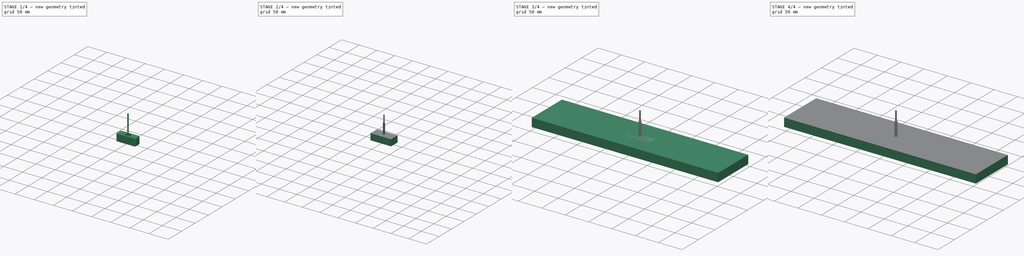
[diagram: build sequence overview — one tinted view per stage of 4, left to right]
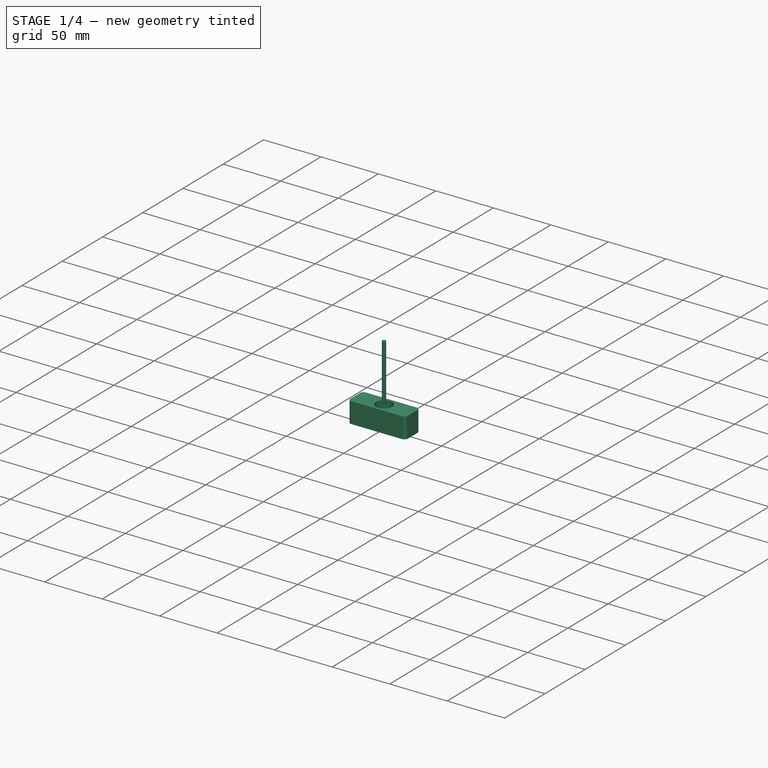
[diagram: stage 1 of 4 — iso view after this stage's code; geometry added in this stage tinted green]
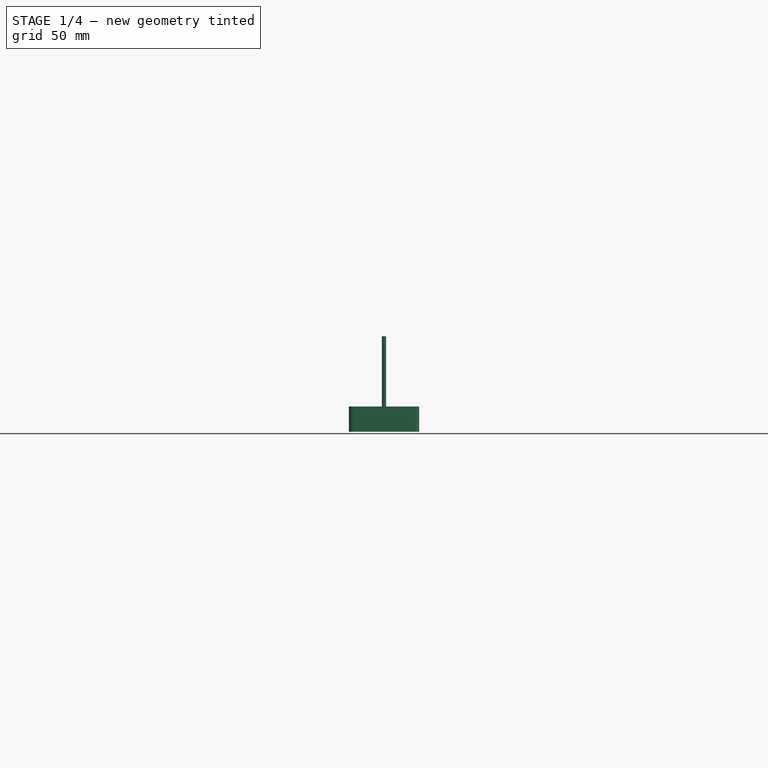
[diagram: stage 1 of 4 — front view after this stage's code; geometry added in this stage tinted green]
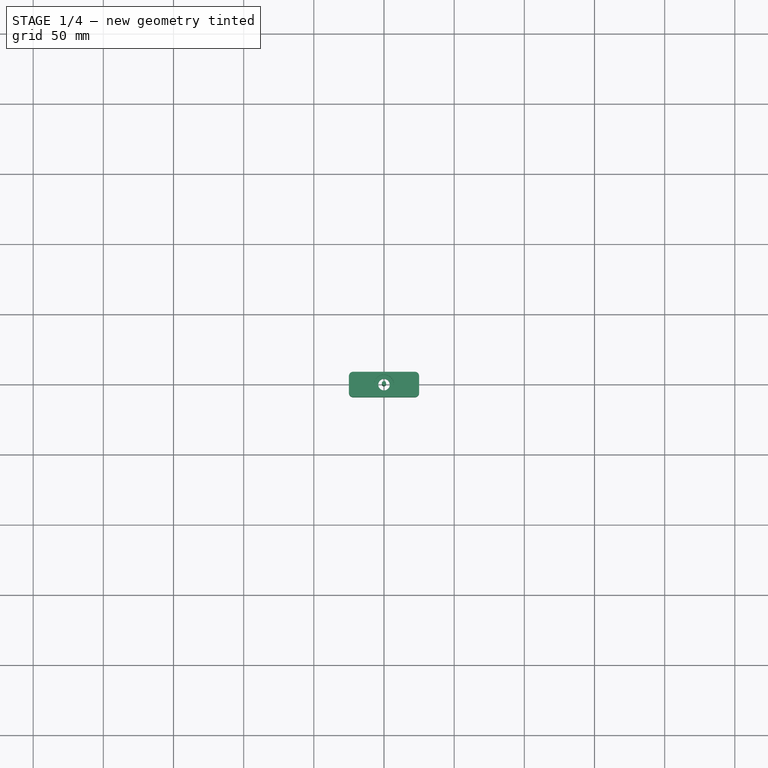
[diagram: stage 1 of 4 — top view after this stage's code; geometry added in this stage tinted green]
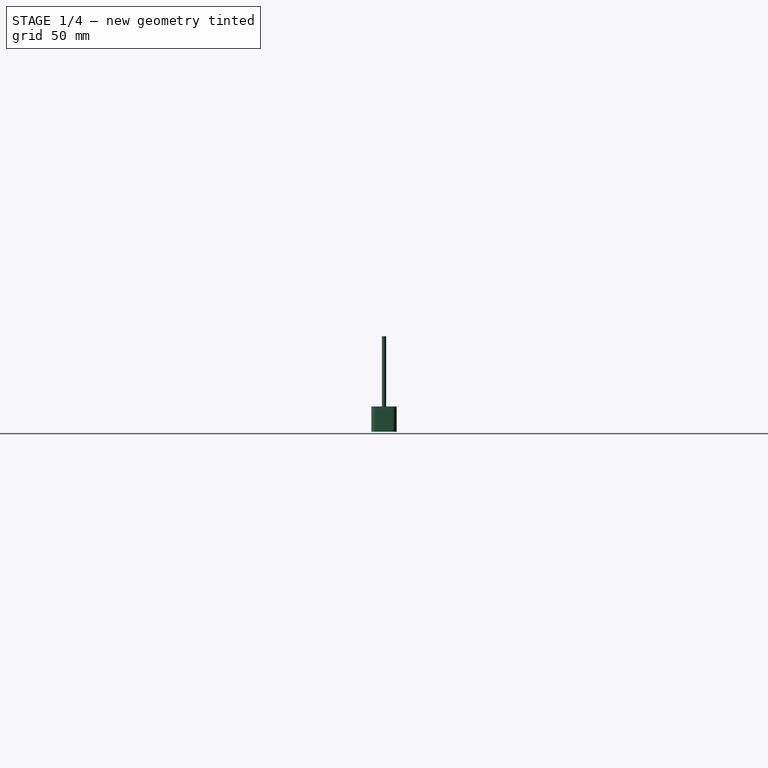
[diagram: stage 1 of 4 — right view after this stage's code; geometry added in this stage tinted green]
FCSTD DOCUMENT  (FreeCAD 1.0R39109 (Git))
Label: Starlink_suport
License: All rights reserved
LicenseURL: http://en.wikipedia.org/wiki/All_rights_reserved
objects: Path::FeaturePython×14, Part::FeaturePython×10, App::DocumentObjectGroup×9, App::FeaturePython×3, PartDesign::Body×3, Sketcher::SketchObject×3, PartDesign::ShapeBinder×2, PartDesign::Pad×2, Part::Feature×1, PartDesign::Fillet×1, PartDesign::Pocket×1
note: 40 computed .brp shape members not serialized (recipe doc carries the construction recipe); baked Part::Feature solids carry a one-line shape summary decoded from their .brp

FEATURE [Path::FeaturePython] Adaptive  # Path/CAM operation (typed FeaturePython)
  Active = true
  Base = -> [Clone001]
  ClearanceHeight = 5
  CoolantMode = 0
  CycleTime = 00:24:47
  ExtensionCorners = true
  ExtensionLengthDefault = 2.5
  FinalDepth = -18
  FinishDepth = 0
  FinishingProfile = true
  ForceInsideOut = false
  HelixAngle = 5
  HelixConeAngle = 0
  HelixDiameterLimit = 2
  KeepToolDownRatio = 3
  LiftDistance = 0
  OpFinalDepth = -18
  OpStartDepth = 2.167e-13
  OpStockZMax = 2.167e-13
  OpStockZMin = -18
  OpToolDiameter = 5
  OperationType = 0
  SafeHeight = 3
  Side = 1
  StartDepth = 2.167e-13
  StepDown = 10
  StepOver = 20
  StockToLeave = 0
  StopProcessing = false
  Stopped = false
  Tolerance = 0.1
  ToolController = -> _mm_Endmill002
  UseHelixArcs = false
  UseOutline = false
  expr: ClearanceHeight = OpStockZMax + SetupSheet001.ClearanceHeightOffset
  expr: ExtensionLengthDefault = OpToolDiameter / 2
  expr: FinalDepth = OpFinalDepth
  expr: SafeHeight = OpStockZMax + SetupSheet001.SafeHeightOffset
  expr: StartDepth = OpStartDepth
  expr: StepDown = OpToolDiameter * 2
FEATURE [App::DocumentObjectGroup] Operations001
  Group = -> [Adaptive]
FEATURE [Path::FeaturePython] Job001  # Path/CAM operation (typed FeaturePython)
  CycleTime = 00:24:47
  Fixtures = G54
  GeometryTolerance = 0.01
  JobType = 0
  Model = -> Model001
  Operations = -> Operations001
  OrderOutputBy = 0
  PostProcessor = 11
  PostProcessorArgs = --bcnc
  PostProcessorOutputFile = %D/%d_2
  SetupSheet = -> SetupSheet001
  SplitOutput = false
  Stock = -> Stock011
  Tools = -> Tools001
FEATURE [Sketcher::SketchObject] Sketch
  ArcFitTolerance = 1e-06
  AttachmentSupport = -> [XY_Plane002]
  FullyConstrained = true
  MakeInternals = false
  MapMode = 5
  sketch-geometry (6):
    g0: LineSegment StartX=-25 StartY=-9 StartZ=0 EndX=25 EndY=-9 EndZ=0
    g1: LineSegment StartX=25 StartY=-9 StartZ=0 EndX=25 EndY=9 EndZ=0
    g2: LineSegment StartX=25 StartY=9 StartZ=0 EndX=-25 EndY=9 EndZ=0
    g3: LineSegment StartX=-25 StartY=9 StartZ=0 EndX=-25 EndY=-9 EndZ=0
    g4: GeomPoint [constr] X=0 Y=0 Z=0
    g5: Circle CenterX=0 CenterY=0 CenterZ=0 NormalX=0 NormalY=0 NormalZ=1 AngleXU=0 Radius=4.1
  constraints (14):
    c: Coincident(g0,g1)
    c: Coincident(g1,g2)
    c: Coincident(g2,g3)
    c: Coincident(g3,g0)
    c: Horizontal(g0)
    c: Horizontal(g2)
    c: Vertical(g1)
    c: Vertical(g3)
    c: Symmetric(g2,g0,g4)
    c: Distance(g1,g3) = 50
    c: Distance(g0,g2) = 18
    c: Coincident(g4,g-1)
    c: Diameter(g5) = 8.2
    c: Coincident(g5,g4)
FEATURE [PartDesign::Pad] Pad001
  Direction = (0,0,1)
  Length = 18
  Length2 = 10
  Profile = -> Sketch
  ReferenceAxis = -> Sketch [N_Axis]
  Refine = true
  Reversed = true
  Suppressed = false
  Type = 0
FEATURE [PartDesign::Fillet] Fillet
  Base = -> Pad001 [Edge2,Edge5,Edge8,Edge1]
  BaseFeature = -> Pad001
  Radius = 3
  Refine = true
  SupportTransform = false
  Suppressed = false
  UseAllEdges = false
FEATURE [Sketcher::SketchObject] Sketch003
  ArcFitTolerance = 1e-06
  AttachmentSupport = -> [Fillet]
  FullyConstrained = true
  MakeInternals = false
  MapMode = 5
  sketch-geometry (1):
    g0: Circle CenterX=0 CenterY=0 CenterZ=0 NormalX=0 NormalY=0 NormalZ=1 AngleXU=0 Radius=7
  constraints (2):
    c: Diameter(g0) = 14
    c: Coincident(g0,g-1)
FEATURE [PartDesign::Pocket] Pocket
  BaseFeature = -> Fillet
  Direction = (0,0,-1)
  Length = 9
  Length2 = 5
  Profile = -> Sketch003
  ReferenceAxis = -> Sketch003 [N_Axis]
  Refine = true
  Suppressed = false
  Type = 0
FEATURE [Part::FeaturePython] ToolBit005  label="3mm Endmill002"  # Path/CAM toolbit (typed FeaturePython)
  BitPropertyNames = Chipload | CuttingEdgeHeight | Diameter | Flutes | Length | Material | ShankDiameter | SpindleDirection
  BitShape = <path>
  Chipload = 0
  CuttingEdgeHeight = 15
  Diameter = 3
  File = <path>
  Flutes = 0
  Length = 50
  Material = 0
  ShankDiameter = 3
  ShapeName = endmill
  SpindleDirection = 0
FEATURE [Path::FeaturePython] _mm_Endmill003  label="3mm Endmill003"  # Path/CAM operation (typed FeaturePython)
  HorizFeed = 6.66667
  HorizRapid = 0
  SpindleDir = 0
  SpindleSpeed = 10000
  Tool = -> ToolBit005
  ToolNumber = 2
  VertFeed = 3.33333
  VertRapid = 0
  expr: HorizRapid = SetupSheet002.HorizRapid
  expr: VertRapid = SetupSheet002.VertRapid
FEATURE [App::DocumentObjectGroup] Tools002
  Group = -> [_mm_Endmill003]
FEATURE [Path::FeaturePython] Adaptive001  # Path/CAM operation (typed FeaturePython)
  Active = true
  Base = -> [Clone002]
  ClearanceHeight = 5
  CoolantMode = 0
  CycleTime = 00:02:14
  ExtensionCorners = true
  ExtensionLengthDefault = 1.5
  FinalDepth = -9
  FinishDepth = 0
  FinishingProfile = true
  ForceInsideOut = true
  HelixAngle = 5
  HelixConeAngle = 0
  HelixDiameterLimit = 2
  KeepToolDownRatio = 3
  LiftDistance = 0
  OpFinalDepth = -9
  OpStartDepth = 0
  OpStockZMax = 0
  OpStockZMin = -18
  OpToolDiameter = 3
  OperationType = 0
  SafeHeight = 3
  Side = 1
  StartDepth = 0
  StepDown = 6
  StepOver = 20
  StockToLeave = 0
  StopProcessing = false
  Stopped = false
  Tolerance = 0.1
  ToolController = -> _mm_Endmill003
  UseHelixArcs = false
  UseOutline = true
  expr: ClearanceHeight = OpStockZMax + SetupSheet002.ClearanceHeightOffset
  expr: ExtensionLengthDefault = OpToolDiameter / 2
  expr: FinalDepth = OpFinalDepth
  expr: SafeHeight = OpStockZMax + SetupSheet002.SafeHeightOffset
  expr: StartDepth = OpStartDepth
  expr: StepDown = OpToolDiameter * 2
FEATURE [Path::FeaturePython] Adaptive002  # Path/CAM operation (typed FeaturePython)
  Active = true
  ClearanceHeight = 5
  CoolantMode = 0
  CycleTime = 00:00:01
  ExtensionCorners = true
  ExtensionLengthDefault = 1.5
  FinalDepth = 0
  FinishDepth = 0
  FinishingProfile = true
  ForceInsideOut = false
  HelixAngle = 5
  HelixConeAngle = 0
  HelixDiameterLimit = 0
  KeepToolDownRatio = 3
  LiftDistance = 0
  OpFinalDepth = 0
  OpStartDepth = 3
  OpStockZMax = 0
  OpStockZMin = -18
  OpToolDiameter = 3
  OperationType = 0
  SafeHeight = 3
  Side = 1
  StartDepth = 3
  StepDown = 3
  StepOver = 20
  StockToLeave = 0
  StopProcessing = false
  Stopped = false
  Tolerance = 0.1
  ToolController = -> _mm_Endmill003
  UseHelixArcs = false
  UseOutline = false
  expr: ClearanceHeight = OpStockZMax + SetupSheet002.ClearanceHeightOffset
  expr: ExtensionLengthDefault = OpToolDiameter / 2
  expr: FinalDepth = OpFinalDepth
  expr: SafeHeight = OpStockZMax + SetupSheet002.SafeHeightOffset
  expr: StartDepth = OpStartDepth
  expr: StepDown = OpToolDiameter
FEATURE [Path::FeaturePython] Adaptive003  # Path/CAM operation (typed FeaturePython)
  Active = true
  Base = -> [Clone002]
  ClearanceHeight = 5
  CoolantMode = 0
  CycleTime = 00:01:24
  ExtensionCorners = true
  ExtensionLengthDefault = 1.5
  FinalDepth = -18
  FinishDepth = 0
  FinishingProfile = true
  ForceInsideOut = true
  HelixAngle = 5
  HelixConeAngle = 0
  HelixDiameterLimit = 2
  KeepToolDownRatio = 3
  LiftDistance = 0
  OpFinalDepth = -18
  OpStartDepth = 0
  OpStockZMax = 0
  OpStockZMin = -18
  OpToolDiameter = 3
  OperationType = 0
  SafeHeight = 3
  Side = 1
  StartDepth = -9
  StepDown = 6
  StepOver = 20
  StockToLeave = 0
  StopProcessing = false
  Stopped = false
  Tolerance = 0.1
  ToolController = -> _mm_Endmill003
  UseHelixArcs = false
  UseOutline = false
  expr: ClearanceHeight = OpStockZMax + SetupSheet002.ClearanceHeightOffset
  expr: ExtensionLengthDefault = OpToolDiameter / 2
  expr: FinalDepth = OpFinalDepth
  expr: SafeHeight = OpStockZMax + SetupSheet002.SafeHeightOffset
  expr: StepDown = OpToolDiameter * 2
FEATURE [Path::FeaturePython] Profile001  # Path/CAM operation (typed FeaturePython)
  Active = true
  AreaParams:
    Tolerance = 1e-07
    FitArcs = True
    Simplify = False
    CleanDistance = 0.0
    Accuracy = 0.01
    Unit = 1.0
    MinArcPoints = 4
    MaxArcPoints = 100
    ClipperScale = 10000000.0
    Fill = 0
    Coplanar = 0
    Reorient = True
    Outline = False
    Explode = False
    OpenMode = 0
    Deflection = 0.01
    SubjectFill = 0
    ClipFill = 0
    Offset = 1.5
    ExtraPass = 0
    Stepover = 0.0
    LastStepover = 0.0
    JoinType = 0
    EndType = 0
    MiterLimit = 2.0
    RoundPrecision = 0.0
    PocketMode = 0
    ToolRadius = 1.0
    PocketExtraOffset = 0.0
    PocketStepover = 0.0
    PocketLastStepover = 0.0
    FromCenter = False
    Angle = 45.0
    AngleShift = 0.0
    Shift = 0.0
    Thicken = False
    SectionCount = -1
    Stepdown = 1.0
    SectionOffset = 0.0
    SectionTolerance = 1e-06
    SectionMode = 2
    Project = False
  Base = -> [Clone002]
  ClearanceHeight = 5
  CoolantMode = 0
  CycleTime = 00:02:21
  Direction = 0
  FinalDepth = -18
  HandleMultipleFeatures = 0
  JoinType = 0
  MiterLimit = 0.1
  OffsetExtra = 0
  OpFinalDepth = -18
  OpStartDepth = 0
  OpStockZMax = 0
  OpStockZMin = -18
  OpToolDiameter = 3
  PathParams = {'orientation': 1, 'feedrate': 6.666666666666667, 'feedrate_v': 3.3333333333333335, 'verbose': True, 'resume_height': 3.0, 'retraction': 5.0, 'return_end': True, 'preamble': False}
  SafeHeight = 3
  Side = 0
  SplitArcs = false
  StartDepth = 0
  StartPoint = (0,0,0)
  StepDown = 3
  ToolController = -> _mm_Endmill003
  UseComp = true
  UseStartPoint = false
  processCircles = false
  processHoles = false
  processPerimeter = true
  expr: ClearanceHeight = OpStockZMax + SetupSheet002.ClearanceHeightOffset
  expr: FinalDepth = OpFinalDepth
  expr: SafeHeight = OpStockZMax + SetupSheet002.SafeHeightOffset
  expr: StartDepth = OpStartDepth
  expr: StepDown = OpToolDiameter
FEATURE [App::DocumentObjectGroup] Operations002
  Group = -> [Adaptive001,Adaptive002,Adaptive003,Profile001]
FEATURE [Path::FeaturePython] Job002  # Path/CAM operation (typed FeaturePython)
  CycleTime = 00:06:00
  Fixtures = G54
  GeometryTolerance = 0.01
  JobType = 0
  Model = -> Model002
  Operations = -> Operations002
  OrderOutputBy = 0
  PostProcessor = 11
  PostProcessorArgs = --bcnc
  PostProcessorOutputFile = %D/%d_3
  SetupSheet = -> SetupSheet002
  SplitOutput = false
  Stock = -> Stock012
  Tools = -> Tools002
note: 8 file-system paths scrubbed to <path> (originals preserved in the JSON sidecar)
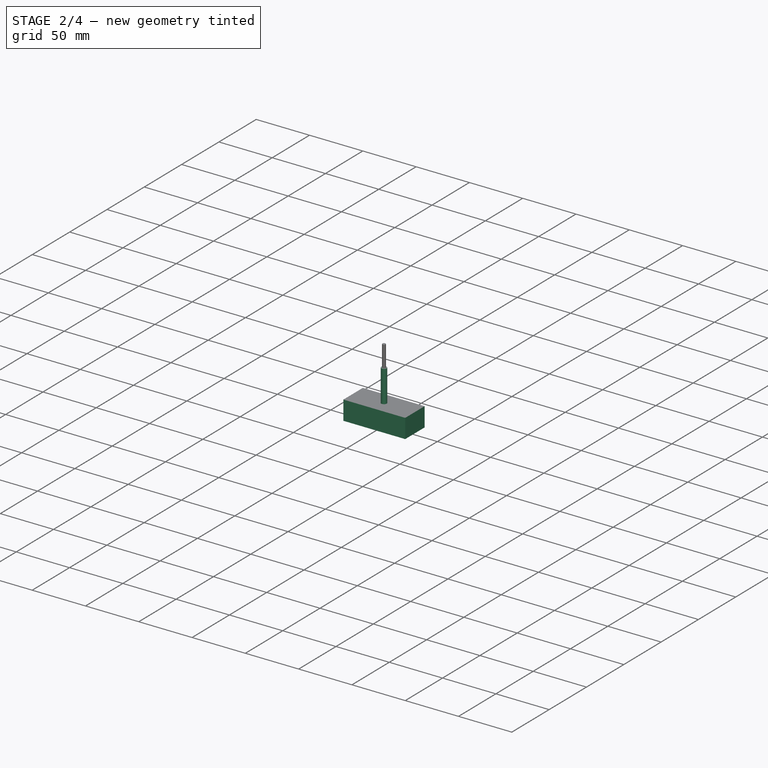
[diagram: stage 2 of 4 — iso view after this stage's code; geometry added in this stage tinted green]
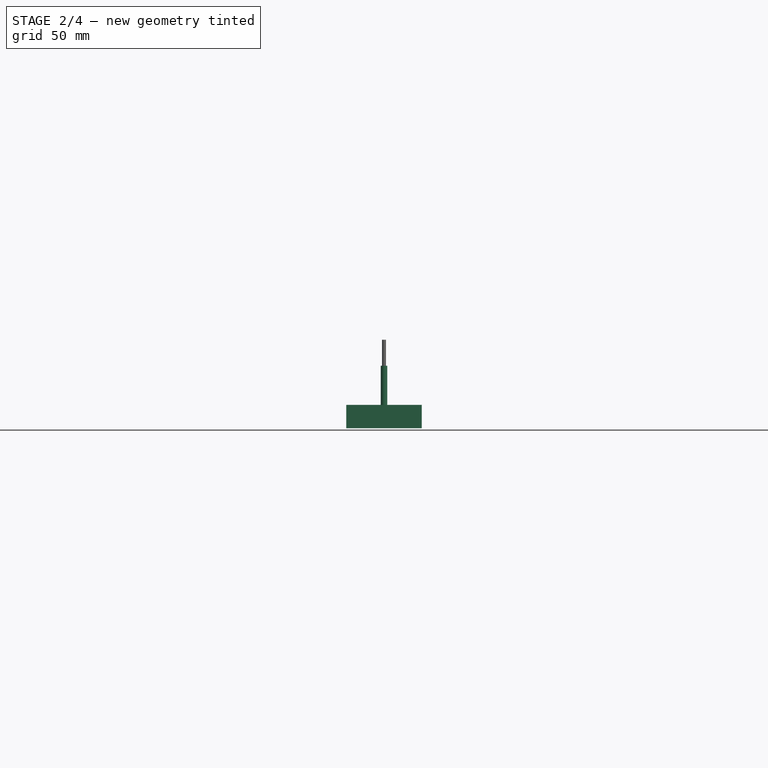
[diagram: stage 2 of 4 — front view after this stage's code; geometry added in this stage tinted green]
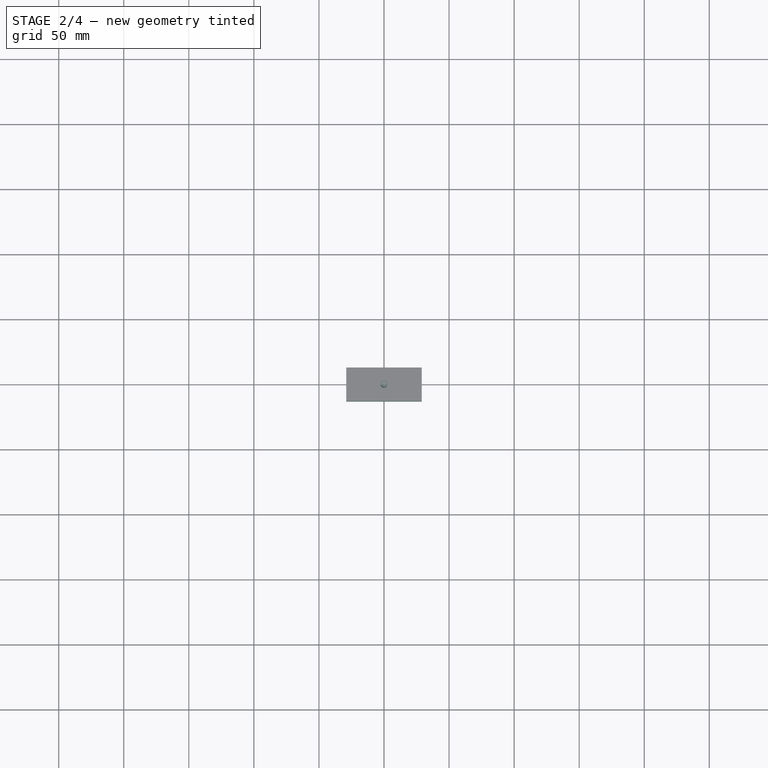
[diagram: stage 2 of 4 — top view after this stage's code; geometry added in this stage tinted green]
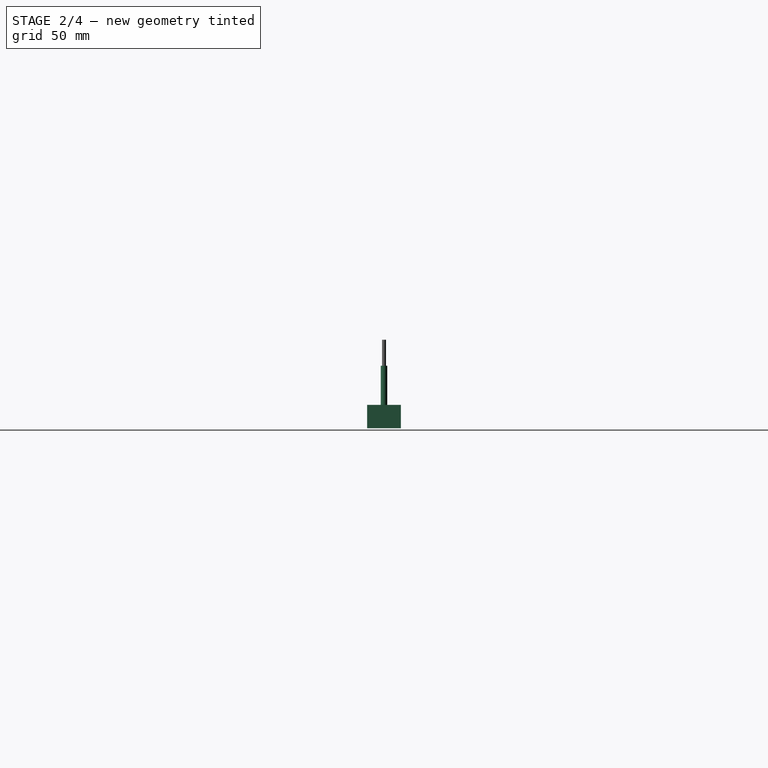
[diagram: stage 2 of 4 — right view after this stage's code; geometry added in this stage tinted green]
FEATURE [App::DocumentObjectGroup] Model001
  Group = -> [Clone001]
FEATURE [Part::FeaturePython] ToolBit003  label="5mm Endmill002"  # Path/CAM toolbit (typed FeaturePython)
  BitPropertyNames = Chipload | CuttingEdgeHeight | Diameter | Flutes | Length | Material | ShankDiameter | SpindleDirection
  BitShape = <path>
  Chipload = 0
  CuttingEdgeHeight = 30
  Diameter = 5
  File = <path>
  Flutes = 0
  Length = 50
  Material = 0
  ShankDiameter = 3
  ShapeName = endmill
  SpindleDirection = 0
FEATURE [PartDesign::Body] Body002  label="Fastfix"
  AllowCompound = false
  Group = -> [Sketch,Pad001,Fillet,Sketch003,Pocket]
  Origin = -> Origin002
  Tip = -> Pocket
FEATURE [App::FeaturePython] SetupSheet002  # Path/CAM operation (typed FeaturePython)
  ClearanceHeightExpression = OpStockZMax+SetupSheet002.ClearanceHeightOffset
  ClearanceHeightOffset = 5
  CoolantMode = 0
  CoolantModes = None | Flood | Mist
  FinalDepthExpression = OpFinalDepth
  HorizRapid = 0
  SafeHeightExpression = OpStockZMax+SetupSheet002.SafeHeightOffset
  SafeHeightOffset = 3
  StartDepthExpression = OpStartDepth
  StepDownExpression = OpToolDiameter
  VertRapid = 0
FEATURE [Part::FeaturePython] Clone002  label="Model-Fastfix"  # Draft clone (typed FeaturePython)
  AttacherType = Attacher::AttachEngine3D
  Fuse = false
  Objects = -> [Body002]
  PathResource = Model
  Scale = (1,1,1)
FEATURE [App::DocumentObjectGroup] Model002
  Group = -> [Clone002]
FEATURE [Part::FeaturePython] Stock012  # WARN: FeaturePython — macro-defined, semantics opaque (R4)
  Base = -> Model002
  ExtXneg = 4
  ExtXpos = 4
  ExtYneg = 4
  ExtYpos = 4
  ExtZneg = 0
  ExtZpos = 0
  Placement = pos=(-25,-9,-18) rot=(0,0,1;0rad)
  StockType = FromBase
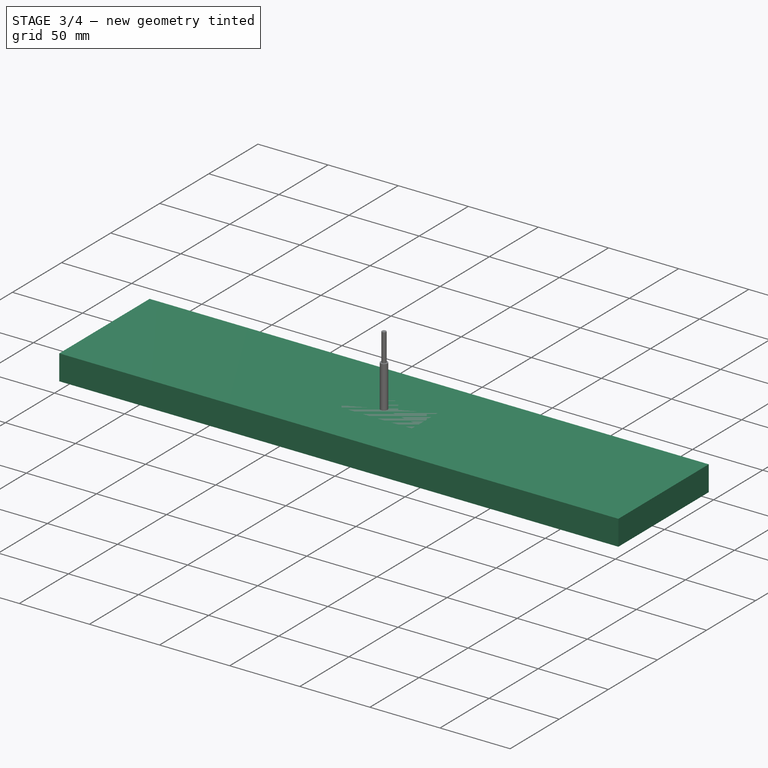
[diagram: stage 3 of 4 — iso view after this stage's code; geometry added in this stage tinted green]
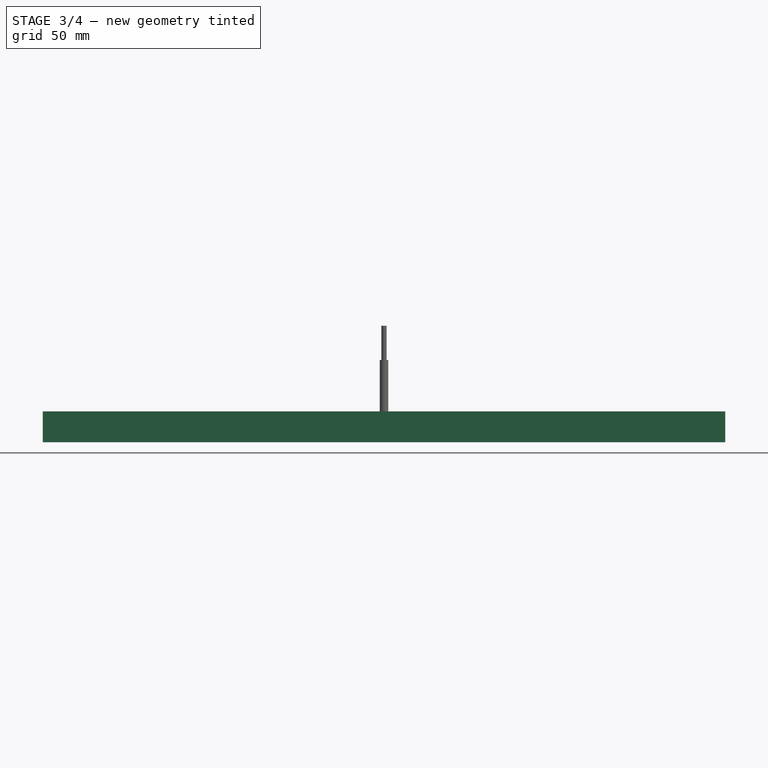
[diagram: stage 3 of 4 — front view after this stage's code; geometry added in this stage tinted green]
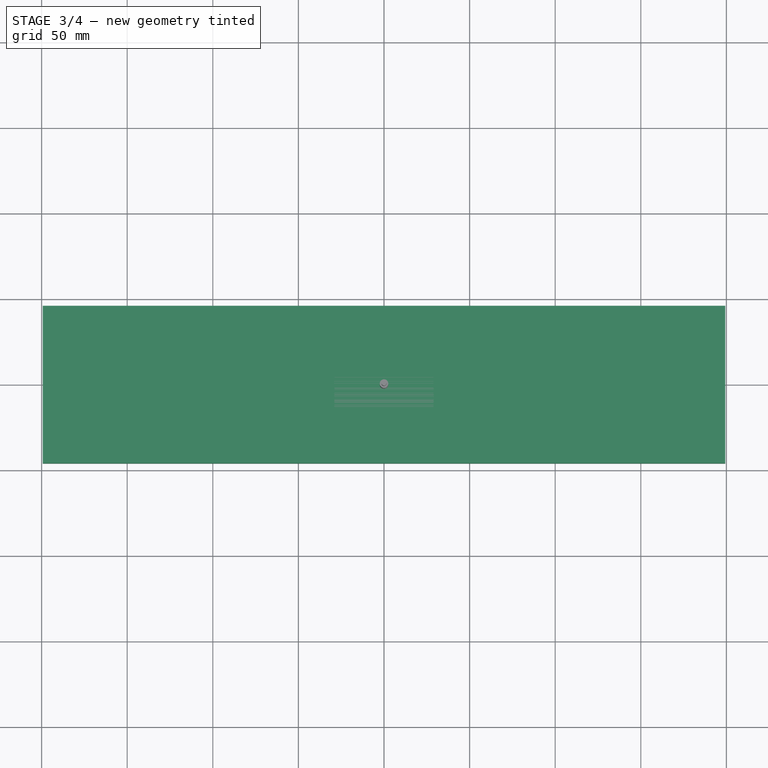
[diagram: stage 3 of 4 — top view after this stage's code; geometry added in this stage tinted green]
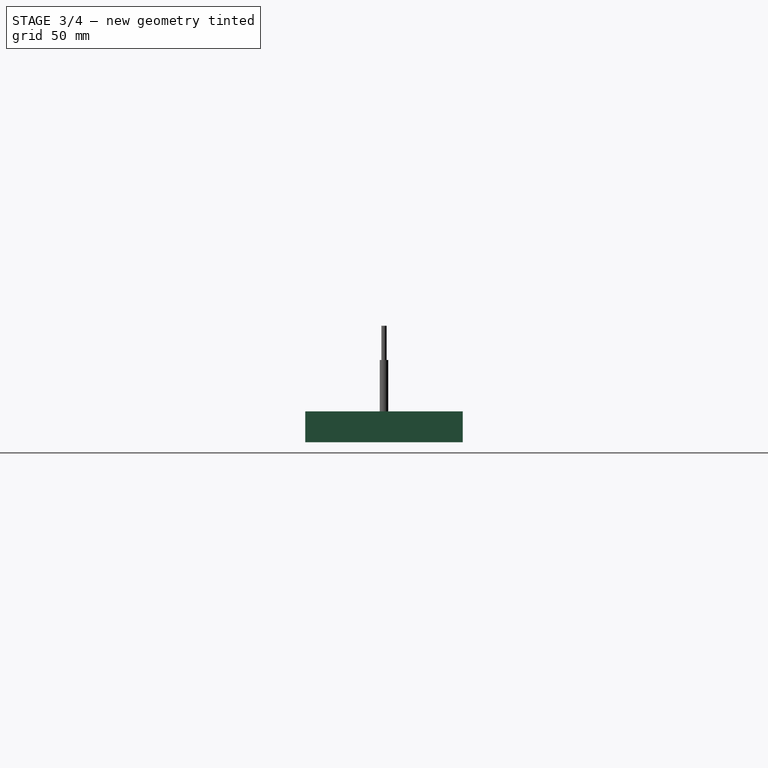
[diagram: stage 3 of 4 — right view after this stage's code; geometry added in this stage tinted green]
FEATURE [Path::FeaturePython] _mm_Endmill001  label="5mm Endmill001"  # Path/CAM operation (typed FeaturePython)
  HorizFeed = 6.66667
  HorizRapid = 0
  SpindleDir = 0
  SpindleSpeed = 10000
  Tool = -> ToolBit
  ToolNumber = 3
  VertFeed = 3.33333
  VertRapid = 0
  expr: HorizRapid = SetupSheet.HorizRapid
  expr: VertRapid = SetupSheet.VertRapid
FEATURE [App::DocumentObjectGroup] Tools
  Group = -> [_mm_Endmill,_mm_Endmill001]
FEATURE [Path::FeaturePython] Job  # Path/CAM operation (typed FeaturePython)
  CycleTime = 00:51:09
  Fixtures = G54
  GeometryTolerance = 0.01
  JobType = 0
  Model = -> Model
  Operations = -> Operations
  OrderOutputBy = 0
  PostProcessor = 11
  PostProcessorArgs = --bcnc
  PostProcessorOutputFile = %D/%d
  SetupSheet = -> SetupSheet
  SplitOutput = false
  Stock = -> Stock
  Tools = -> Tools
FEATURE [PartDesign::ShapeBinder] CopySolid
  TraceSupport = false
FEATURE [PartDesign::Body] Body  label="Тіло"
  AllowCompound = false
  Group = -> [CopySolid]
  Origin = -> Origin
FEATURE [PartDesign::ShapeBinder] CopySolid001
  TraceSupport = false
FEATURE [Sketcher::SketchObject] Sketch002
  ArcFitTolerance = 1e-06
  AttachmentSupport = -> [CopySolid001]
  ExternalGeometry = -> [CopySolid001]
  FullyConstrained = true
  MakeInternals = false
  MapMode = 5
  Placement = pos=(0,0,0) rot=(1,0,0;1.5708rad)
  sketch-geometry (34):
    g0: LineSegment StartX=149.376 StartY=137.38 StartZ=0 EndX=157.376 EndY=137.38 EndZ=0
    g1: LineSegment StartX=157.376 StartY=137.38 StartZ=0 EndX=157.376 EndY=155.38 EndZ=0
    g2: LineSegment StartX=157.376 StartY=155.38 StartZ=0 EndX=149.376 EndY=155.38 EndZ=0
    g3: LineSegment StartX=149.376 StartY=155.38 StartZ=0 EndX=149.376 EndY=137.38 EndZ=0
    g4: GeomPoint [constr] X=153.376 Y=146.38 Z=0
    g5: LineSegment StartX=149.376 StartY=97.3803 StartZ=0 EndX=157.376 EndY=97.3803 EndZ=0
    g6: LineSegment StartX=157.376 StartY=97.3803 StartZ=0 EndX=157.376 EndY=115.38 EndZ=0
    g7: LineSegment StartX=157.376 StartY=115.38 StartZ=0 EndX=149.376 EndY=115.38 EndZ=0
    g8: LineSegment StartX=149.376 StartY=115.38 StartZ=0 EndX=149.376 EndY=97.3803 EndZ=0
    g9: GeomPoint [constr] X=153.376 Y=106.38 Z=0
    g10: LineSegment StartX=-227.297 StartY=137.38 StartZ=0 EndX=-219.297 EndY=137.38 EndZ=0
    g11: LineSegment StartX=-219.297 StartY=137.38 StartZ=0 EndX=-219.297 EndY=155.38 EndZ=0
    g12: LineSegment StartX=-219.297 StartY=155.38 StartZ=0 EndX=-227.297 EndY=155.38 EndZ=0
    g13: LineSegment StartX=-227.297 StartY=155.38 StartZ=0 EndX=-227.297 EndY=137.38 EndZ=0
    g14: GeomPoint [constr] X=-223.297 Y=146.38 Z=0
    g15: LineSegment StartX=-227.297 StartY=97.3803 StartZ=0 EndX=-219.297 EndY=97.3803 EndZ=0
    g16: LineSegment StartX=-219.297 StartY=97.3803 StartZ=0 EndX=-219.297 EndY=115.38 EndZ=0
    g17: LineSegment StartX=-219.297 StartY=115.38 StartZ=0 EndX=-227.297 EndY=115.38 EndZ=0
    g18: LineSegment StartX=-227.297 StartY=115.38 StartZ=0 EndX=-227.297 EndY=97.3803 EndZ=0
    g19: GeomPoint [constr] X=-223.297 Y=106.38 Z=0
    g20: LineSegment StartX=130.376 StartY=162.38 StartZ=0 EndX=146.376 EndY=162.38 EndZ=0
    g21: LineSegment StartX=146.376 StartY=162.38 StartZ=0 EndX=146.376 EndY=170.38 EndZ=0
    g22: LineSegment StartX=146.376 StartY=170.38 StartZ=0 EndX=130.376 EndY=170.38 EndZ=0
    g23: LineSegment StartX=130.376 StartY=170.38 StartZ=0 EndX=130.376 EndY=162.38 EndZ=0
    g24: GeomPoint [constr] X=138.376 Y=166.38 Z=0
    g25: LineSegment StartX=-216.297 StartY=162.38 StartZ=0 EndX=-200.297 EndY=162.38 EndZ=0
    g26: LineSegment StartX=-200.297 StartY=162.38 StartZ=0 EndX=-200.297 EndY=170.38 EndZ=0
    g27: LineSegment StartX=-200.297 StartY=170.38 StartZ=0 EndX=-216.297 EndY=170.38 EndZ=0
    g28: LineSegment StartX=-216.297 StartY=170.38 StartZ=0 EndX=-216.297 EndY=162.38 EndZ=0
    g29: GeomPoint [constr] X=-208.297 Y=166.38 Z=0
    g30: LineSegment StartX=-233.297 StartY=176.38 StartZ=0 EndX=-233.297 EndY=86.3803 EndZ=0
    g31: LineSegment StartX=-233.297 StartY=86.3803 StartZ=0 EndX=163.376 EndY=86.3803 EndZ=0
    g32: LineSegment StartX=163.376 StartY=86.3803 StartZ=0 EndX=163.376 EndY=176.38 EndZ=0
    g33: LineSegment StartX=163.376 StartY=176.38 StartZ=0 EndX=-233.297 EndY=176.38 EndZ=0
  constraints (88):
    c: Coincident(g0,g1)
    c: Coincident(g1,g2)
    c: Coincident(g2,g3)
    c: Coincident(g3,g0)
    c: Horizontal(g0)
    c: Horizontal(g2)
    c: Vertical(g1)
    c: Vertical(g3)
    c: Symmetric(g2,g0,g4)
    c: Distance(g1,g3) = 8
    c: Distance(g0,g2) = 18
    c: DistanceX(g4,g-3) = 10
    c: DistanceY(g4,g-3) = 30
    c: Coincident(g5,g6)
    c: Coincident(g6,g7)
    c: Coincident(g7,g8)
    c: Coincident(g8,g5)
    c: Horizontal(g5)
    c: Horizontal(g7)
    c: Vertical(g6)
    c: Vertical(g8)
    c: Symmetric(g7,g5,g9)
    c: Distance(g6,g8) = 8
    c: Distance(g5,g7) = 18
    c: Coincident(g10,g11)
    c: Coincident(g11,g12)
    c: Coincident(g12,g13)
    c: Coincident(g13,g10)
    c: Horizontal(g10)
    c: Horizontal(g12)
    c: Vertical(g11)
    c: Vertical(g13)
    c: Symmetric(g12,g10,g14)
    c: Distance(g11,g13) = 8
    c: Distance(g10,g12) = 18
    c: Coincident(g15,g16)
    c: Coincident(g16,g17)
    c: Coincident(g17,g18)
    c: Coincident(g18,g15)
    c: Horizontal(g15)
    c: Horizontal(g17)
    c: Vertical(g16)
    c: Vertical(g18)
    c: Symmetric(g17,g15,g19)
    c: Distance(g16,g18) = 8
    c: Distance(g15,g17) = 18
    c: DistanceY(g9,g4) = 40
    c: Vertical(g4,g9)
    c: DistanceX(g-5,g14) = 10
    c: Vertical(g14,g19)
    c: Horizontal(g14,g4)
    c: Horizontal(g9,g19)
    c: Coincident(g20,g21)
    c: Coincident(g21,g22)
    c: Coincident(g22,g23)
    c: Coincident(g23,g20)
    c: Horizontal(g20)
    c: Horizontal(g22)
    c: Vertical(g21)
    c: Vertical(g23)
    c: Symmetric(g22,g20,g24)
    c: Distance(g21,g23) = 16
    c: Distance(g20,g22) = 8
    c: DistanceX(g24,g-3) = 25
    c: DistanceY(g24,g-3) = 10
    c: Coincident(g25,g26)
    c: Coincident(g26,g27)
    c: Coincident(g27,g28)
    c: Coincident(g28,g25)
    c: Horizontal(g25)
    c: Horizontal(g27)
    c: Vertical(g26)
    c: Vertical(g28)
    c: Symmetric(g27,g25,g29)
    c: Distance(g26,g28) = 16
    c: Distance(g25,g27) = 8
    c: DistanceX(g-5,g29) = 25
    c: DistanceY(g29,g-5) = 10
    c: Coincident(g30,g31)
    c: Coincident(g31,g32)
    c: Coincident(g32,g33)
    c: Coincident(g33,g30)
    c: Vertical(g30)
    c: Vertical(g32)
    c: Horizontal(g31)
    c: Horizontal(g33)
    c: Coincident(g30,g-5)
    c: Coincident(g31,g-4)
FEATURE [PartDesign::Pad] Pad
  Direction = (0,-1,2e-16)
  Length = 18
  Length2 = 10
  Profile = -> Sketch002
  ReferenceAxis = -> Sketch002 [N_Axis]
  Refine = true
  Reversed = true
  Suppressed = false
  Type = 0
FEATURE [PartDesign::Body] Body001  label="NutCut"
  AllowCompound = false
  Group = -> [Sketch002,Pad]
  Origin = -> Origin001
  Tip = -> Pad
FEATURE [App::FeaturePython] SetupSheet001  # Path/CAM operation (typed FeaturePython)
  ClearanceHeightExpression = OpStockZMax+SetupSheet001.ClearanceHeightOffset
  ClearanceHeightOffset = 5
  CoolantMode = 0
  CoolantModes = None | Flood | Mist
  FinalDepthExpression = OpFinalDepth
  HorizRapid = 0
  SafeHeightExpression = OpStockZMax+SetupSheet001.SafeHeightOffset
  SafeHeightOffset = 3
  StartDepthExpression = OpStartDepth
  StepDownExpression = OpToolDiameter
  VertRapid = 0
FEATURE [Part::FeaturePython] Clone001  label="Model-Тіло001"  # Draft clone (typed FeaturePython)
  AttacherType = Attacher::AttachEngine3D
  Fuse = false
  Objects = -> [Body001]
  PathResource = Model
  Placement = pos=(34.9605,-131.38,3.56e-14) rot=(1,0,0;4.71239rad)
  Scale = (1,1,1)
FEATURE [Path::FeaturePython] _mm_Endmill002  label="5mm Endmill003"  # Path/CAM operation (typed FeaturePython)
  HorizFeed = 6.66667
  HorizRapid = 0
  SpindleDir = 0
  SpindleSpeed = 10000
  Tool = -> ToolBit003
  ToolNumber = 2
  VertFeed = 3.33333
  VertRapid = 0
  expr: HorizRapid = SetupSheet001.HorizRapid
  expr: VertRapid = SetupSheet001.VertRapid
FEATURE [App::DocumentObjectGroup] Tools001
  Group = -> [_mm_Endmill002]
FEATURE [Part::FeaturePython] Stock011  # WARN: FeaturePython — macro-defined, semantics opaque (R4)
  Base = -> Model001
  ExtXneg = 1
  ExtXpos = 1
  ExtYneg = 1
  ExtYpos = 1
  ExtZneg = 0
  ExtZpos = 0
  Placement = pos=(-198.336,-45,-18) rot=(0,0,1;0rad)
  StockType = FromBase
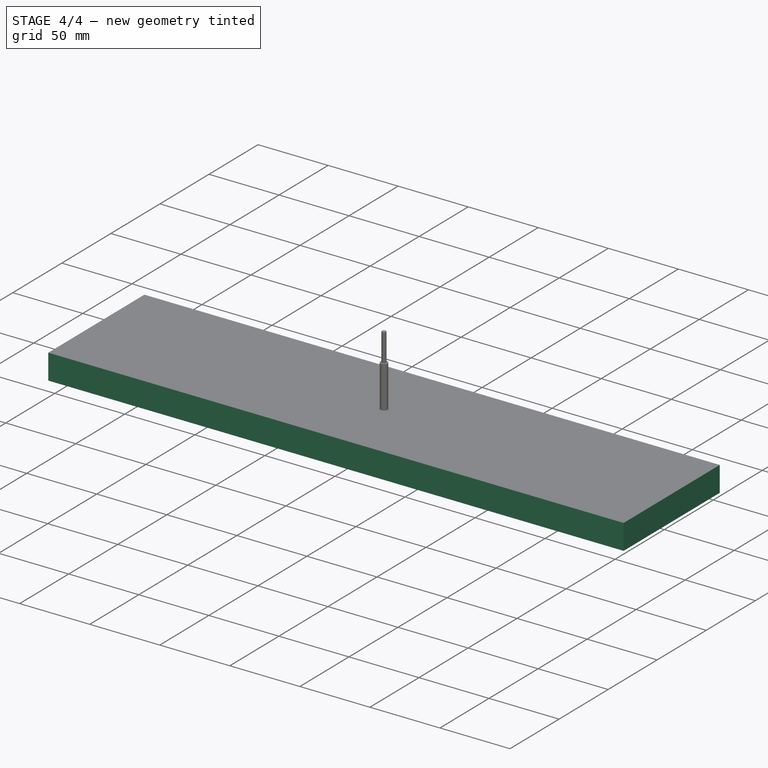
[diagram: stage 4 of 4 — iso view after this stage's code; geometry added in this stage tinted green]
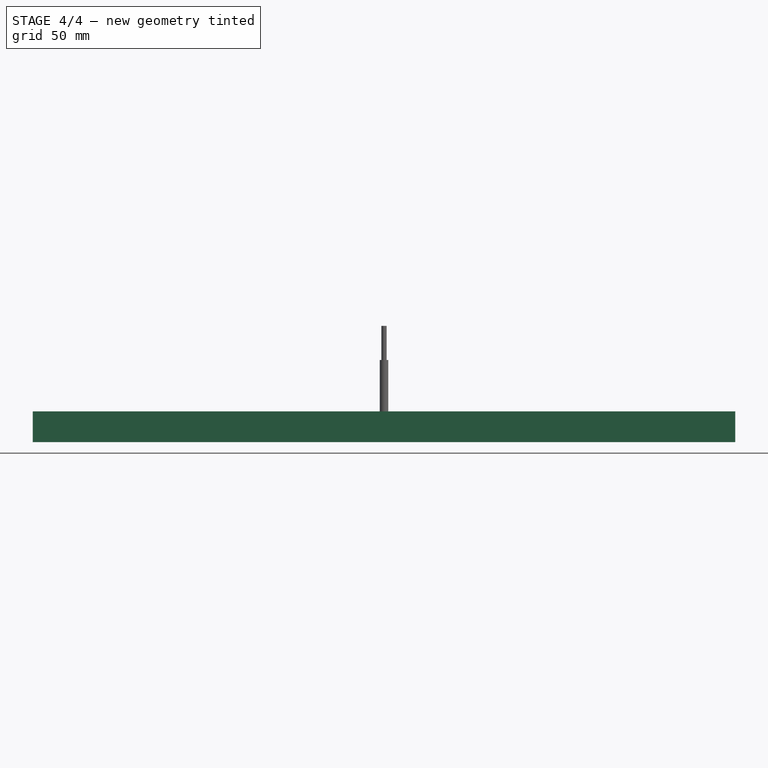
[diagram: stage 4 of 4 — front view after this stage's code; geometry added in this stage tinted green]
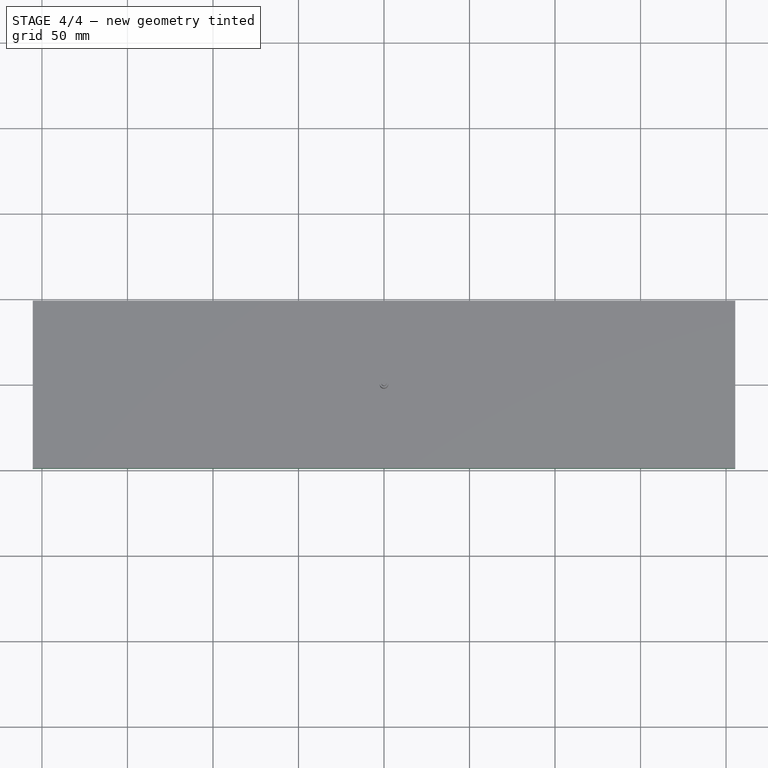
[diagram: stage 4 of 4 — top view after this stage's code; geometry added in this stage tinted green]
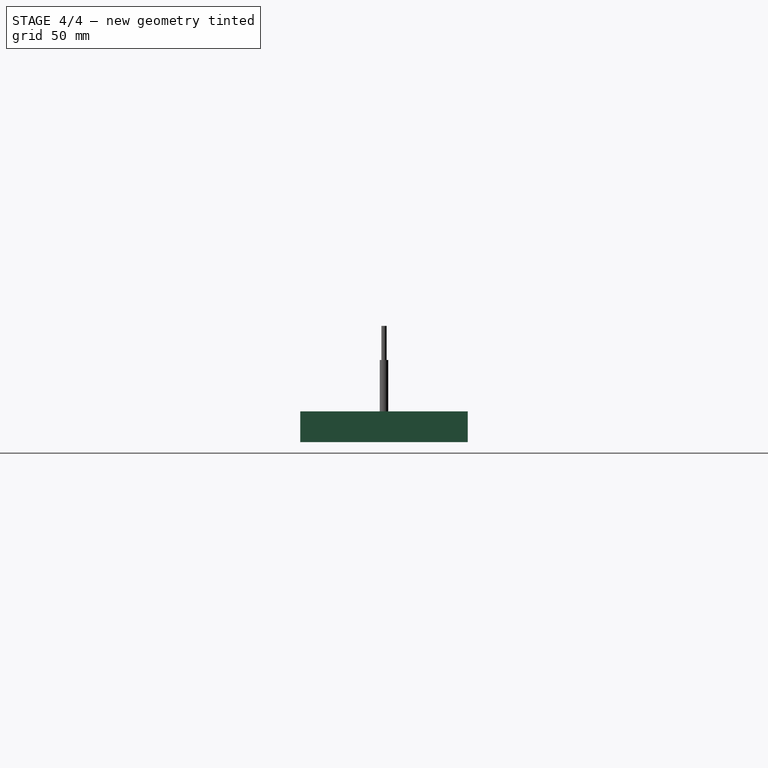
[diagram: stage 4 of 4 — right view after this stage's code; geometry added in this stage tinted green]
FEATURE [Part::Feature] Solid  label="Starlink_support"
  shape: bbox 402.7 x 21.45 x 90 mm, 20 faces (baked)
FEATURE [App::FeaturePython] SetupSheet  # Path/CAM operation (typed FeaturePython)
  ClearanceHeightExpression = OpStockZMax+SetupSheet.ClearanceHeightOffset
  ClearanceHeightOffset = 5
  CoolantMode = 0
  CoolantModes = None | Flood | Mist
  FinalDepthExpression = OpFinalDepth
  HorizRapid = 0
  SafeHeightExpression = OpStockZMax+SetupSheet.SafeHeightOffset
  SafeHeightOffset = 3
  StartDepthExpression = OpStartDepth
  StepDownExpression = OpToolDiameter
  VertRapid = 0
FEATURE [Part::FeaturePython] Clone  label="Model-Starlink_support"  # Draft clone (typed FeaturePython)
  AttacherType = Attacher::AttachEngine3D
  Fuse = false
  Objects = -> [Solid]
  PathResource = Model
  Placement = pos=(-34.9594,131.381,-2.3799e-05) rot=(0,0.707106,-0.707108;3.1416rad)
  Scale = (1,1,1)
FEATURE [App::DocumentObjectGroup] Model
  Group = -> [Clone]
FEATURE [Part::FeaturePython] Stock  # WARN: FeaturePython — macro-defined, semantics opaque (R4)
  Base = -> Model
  ExtXneg = 4
  ExtXpos = 4
  ExtYneg = 4
  ExtYpos = 4
  ExtZneg = 0
  ExtZpos = -0.01
  Placement = pos=(-201.337,-45.0016,-18.0017) rot=(0,0,1;0rad)
  StockType = FromBase
FEATURE [Part::FeaturePython] ToolBit001  label="3mm Endmill"  # Path/CAM toolbit (typed FeaturePython)
  BitPropertyNames = Chipload | CuttingEdgeHeight | Diameter | Flutes | Length | Material | ShankDiameter | SpindleDirection
  BitShape = <path>
  Chipload = 0
  CuttingEdgeHeight = 15
  Diameter = 3
  File = <path>
  Flutes = 0
  Length = 50
  Material = 0
  ShankDiameter = 3
  ShapeName = endmill
  SpindleDirection = 0
FEATURE [Path::FeaturePython] _mm_Endmill  label="3mm Endmill001"  # Path/CAM operation (typed FeaturePython)
  HorizFeed = 6.66667
  HorizRapid = 0
  SpindleDir = 0
  SpindleSpeed = 10000
  Tool = -> ToolBit001
  ToolNumber = 2
  VertFeed = 3.33333
  VertRapid = 0
  expr: HorizRapid = SetupSheet.HorizRapid
  expr: VertRapid = SetupSheet.VertRapid
FEATURE [Path::FeaturePython] Surface  # Path/CAM operation (typed FeaturePython)
  Active = true
  AngularDeflection = 0.25
  AvoidLastX_Faces = 0
  AvoidLastX_InternalFeatures = true
  Base = -> [Clone]
  BoundBox = 0
  BoundaryAdjustment = 0
  BoundaryEnforcement = false
  CircularUseG2G3 = false
  ClearanceHeight = 4.99172
  CoolantMode = 0
  CutMode = 0
  CutPattern = 3
  CutPatternAngle = 0
  CutPatternReversed = false
  CutterTilt = 0
  CycleTime = 00:33:25
  DepthOffset = 0
  DropCutterDir = 0
  DropCutterExtraOffset = (0,0,0)
  FinalDepth = -18.0011
  GapSizes = No gaps identified.
  GapThreshold = 0.005
  HandleMultipleFeatures = 0
  InternalFeaturesAdjustment = 0
  InternalFeaturesCut = true
  LayerMode = 0
  LinearDeflection = 0.0025
  OpFinalDepth = -18.0011
  OpStartDepth = 0.00172232
  OpStockZMax = -0.00827768
  OpStockZMin = -18.0017
  OpToolDiameter = 3
  OptimizeLinearPaths = true
  OptimizeStepOverTransitions = true
  PatternCenterAt = 0
  PatternCenterCustom = (0,0,0)
  ProfileEdges = 0
  RotationAxis = 0
  SafeHeight = 2.99172
  SampleInterval = 1
  ScanType = 0
  ShowTempObjects = false
  StartDepth = 0.00172232
  StartIndex = 0
  StartPoint = (0,0,0)
  StepDown = 3
  StepOver = 20
  StopIndex = 360
  ToolController = -> _mm_Endmill
  UseStartPoint = false
  expr: ClearanceHeight = OpStockZMax + SetupSheet.ClearanceHeightOffset
  expr: FinalDepth = OpFinalDepth
  expr: SafeHeight = OpStockZMax + SetupSheet.SafeHeightOffset
  expr: StartDepth = OpStartDepth
  expr: StepDown = OpToolDiameter
FEATURE [Path::FeaturePython] Profile  # Path/CAM operation (typed FeaturePython)
  Active = true
  AreaParams:
    Tolerance = 1e-07
    FitArcs = True
    Simplify = False
    CleanDistance = 0.0
    Accuracy = 0.01
    Unit = 1.0
    MinArcPoints = 4
    MaxArcPoints = 100
    ClipperScale = 10000000.0
    Fill = 0
    Coplanar = 0
    Reorient = True
    Outline = False
    Explode = False
    OpenMode = 0
    Deflection = 0.01
    SubjectFill = 0
    ClipFill = 0
    Offset = 1.5
    ExtraPass = 0
    Stepover = 0.0
    LastStepover = 0.0
    JoinType = 0
    EndType = 0
    MiterLimit = 2.0
    RoundPrecision = 0.0
    PocketMode = 0
    ToolRadius = 1.0
    PocketExtraOffset = 0.0
    PocketStepover = 0.0
    PocketLastStepover = 0.0
    FromCenter = False
    Angle = 45.0
    AngleShift = 0.0
    Shift = 0.0
    Thicken = False
    SectionCount = -1
    Stepdown = 1.0
    SectionOffset = 0.0
    SectionTolerance = 1e-06
    SectionMode = 2
    Project = False
  Base = -> [Clone]
  ClearanceHeight = 4.99172
  CoolantMode = 0
  CycleTime = 00:17:44
  Direction = 0
  FinalDepth = -17.9983
  HandleMultipleFeatures = 0
  JoinType = 0
  MiterLimit = 0.1
  OffsetExtra = 0
  OpFinalDepth = -17.9983
  OpStartDepth = 0.00172232
  OpStockZMax = -0.00827768
  OpStockZMin = -18.0017
  OpToolDiameter = 3
  PathParams:
    orientation = 1
    feedrate = 6.666666666666667
    feedrate_v = 3.3333333333333335
    verbose = True
    resume_height = 2.9917223218606352
    retraction = 4.991722321860635
    return_end = True
    preamble = False
  SafeHeight = 2.99172
  Side = 0
  SplitArcs = false
  StartDepth = 0.00172232
  StartPoint = (0,0,0)
  StepDown = 3
  ToolController = -> _mm_Endmill
  UseComp = true
  UseStartPoint = false
  processCircles = false
  processHoles = false
  processPerimeter = true
  expr: ClearanceHeight = OpStockZMax + SetupSheet.ClearanceHeightOffset
  expr: FinalDepth = OpFinalDepth
  expr: SafeHeight = OpStockZMax + SetupSheet.SafeHeightOffset
  expr: StartDepth = OpStartDepth
  expr: StepDown = OpToolDiameter
FEATURE [App::DocumentObjectGroup] Operations
  Group = -> [Surface,Profile]
FEATURE [Part::FeaturePython] ToolBit  label="5mm Endmill"  # Path/CAM toolbit (typed FeaturePython)
  BitPropertyNames = Chipload | CuttingEdgeHeight | Diameter | Flutes | Length | Material | ShankDiameter | SpindleDirection
  BitShape = <path>
  Chipload = 0
  CuttingEdgeHeight = 30
  Diameter = 5
  File = <path>
  Flutes = 0
  Length = 50
  Material = 0
  ShankDiameter = 3
  ShapeName = endmill
  SpindleDirection = 0
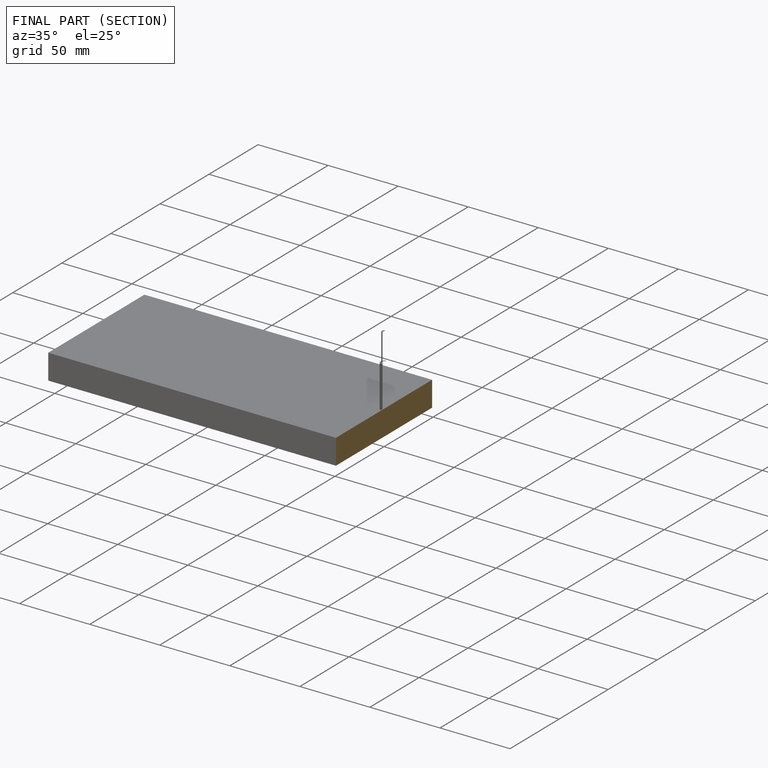
[diagram: finished part — half-section view (interior)]
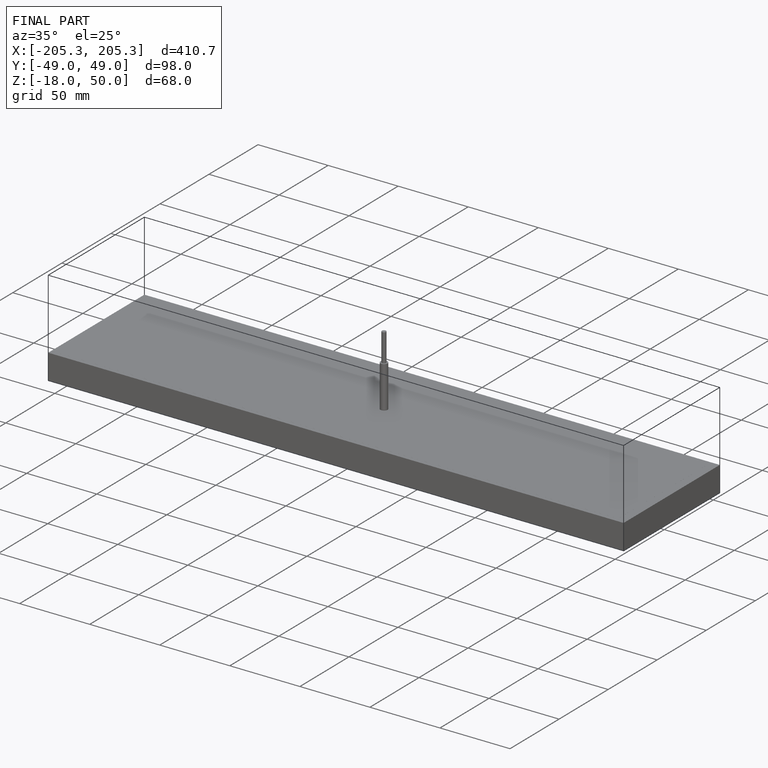
[diagram: finished part — iso view with bounding-box wireframe]
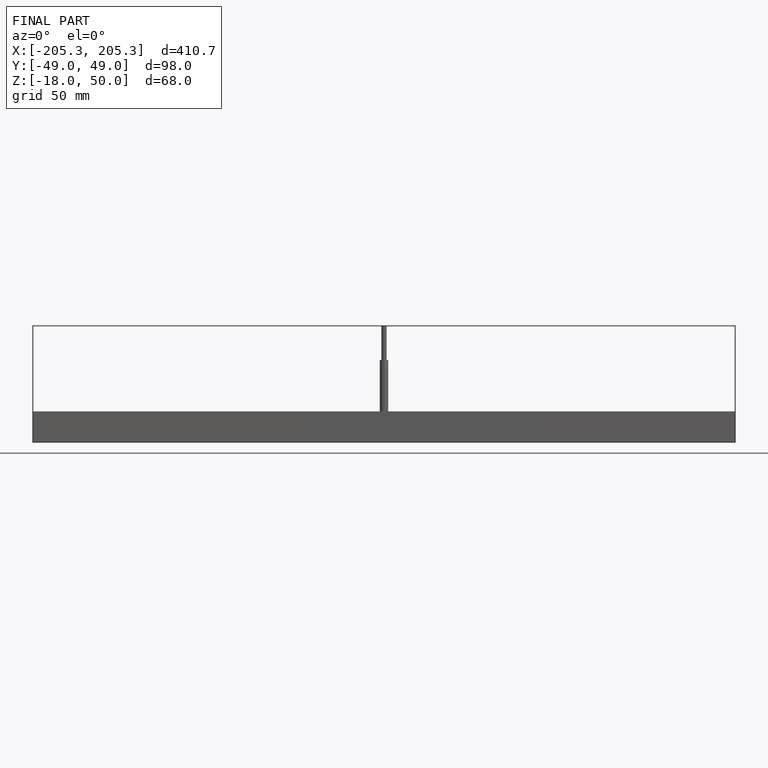
[diagram: finished part — front view with bounding-box wireframe]
